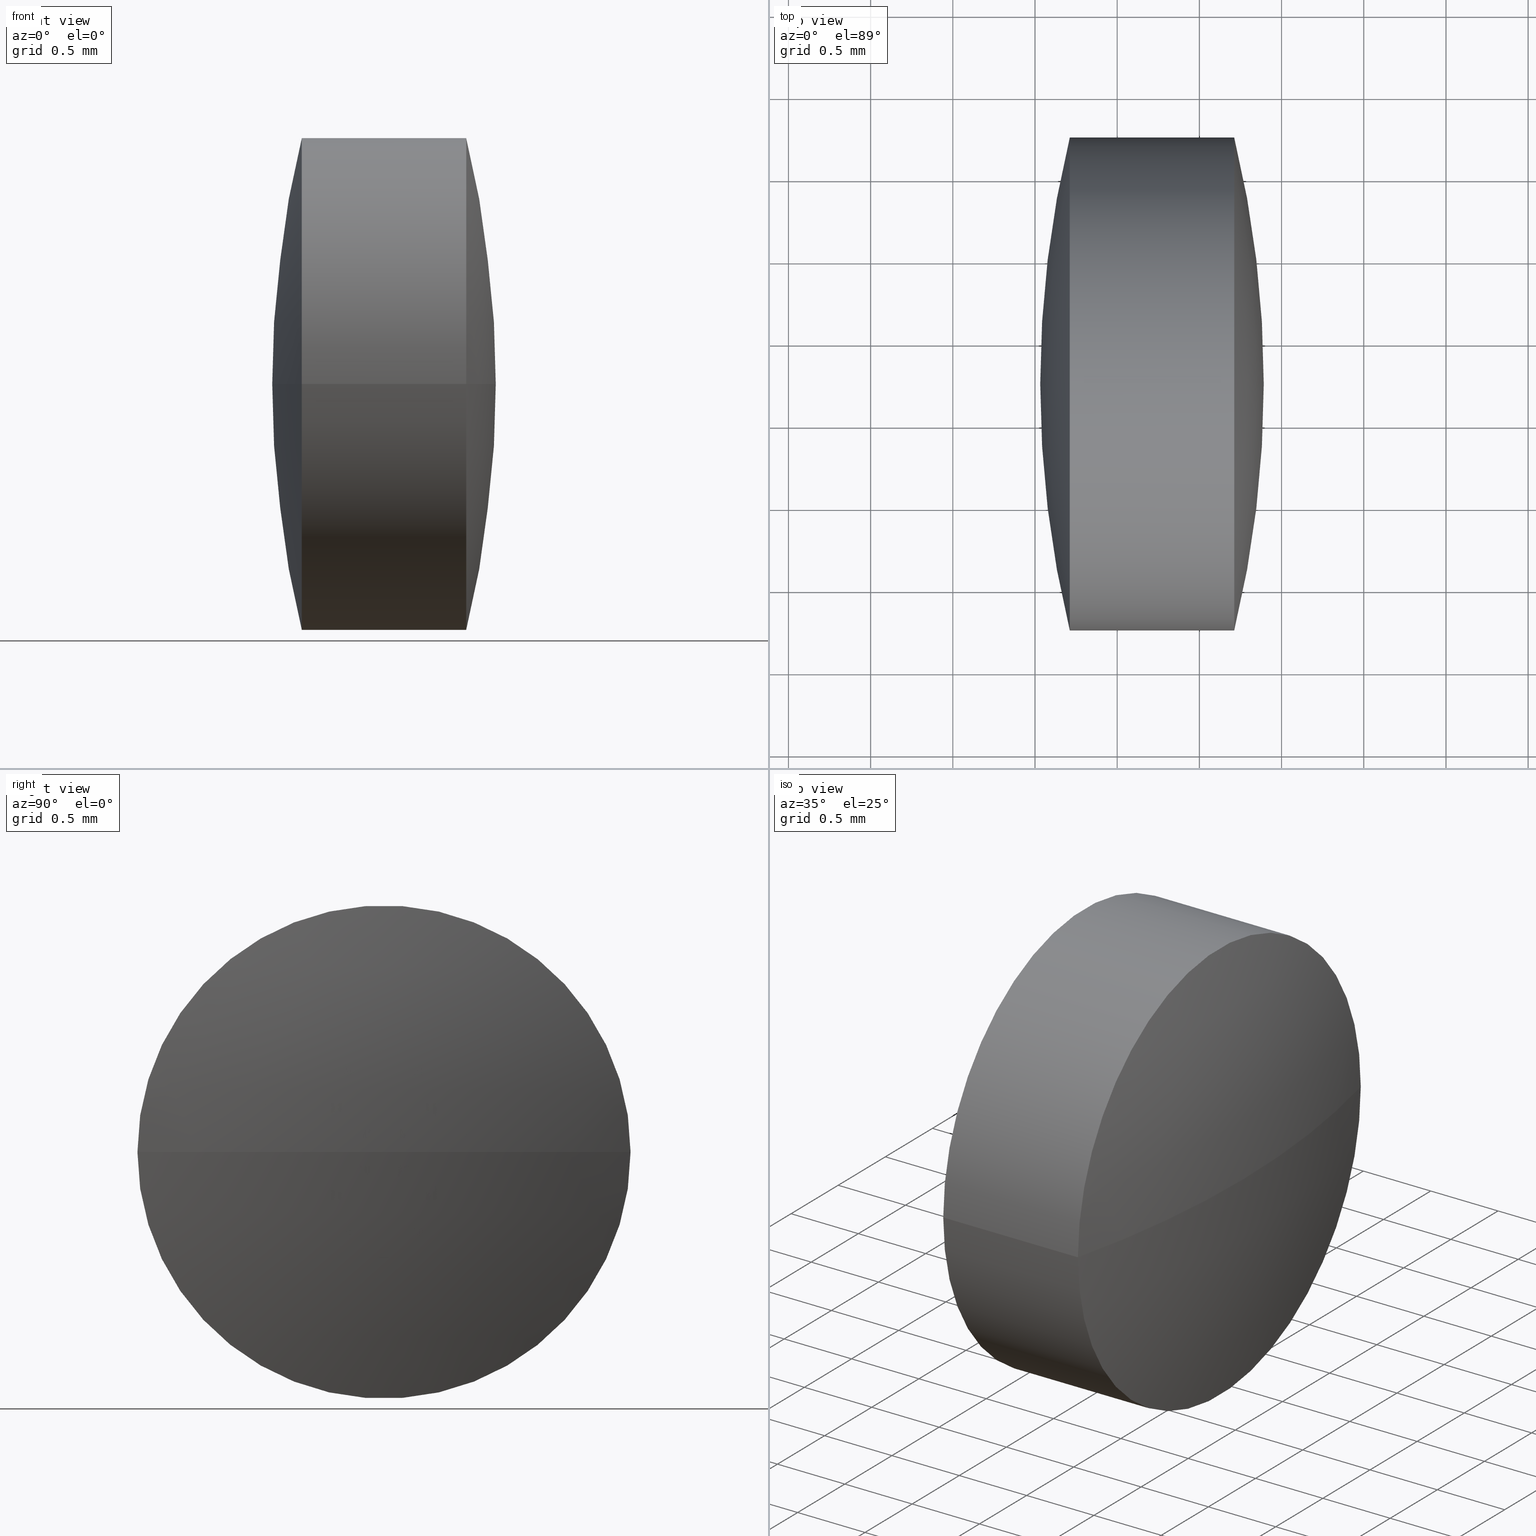
[diagram: canonical four-view strip — front | top / right | iso, engineering-drawing reading convention]
A machine part, canonical four-view strip (front | top / right | iso — engineering-drawing reading convention). The complete STEP part file that produces these views, byte-faithful:
ISO-10303-21;
HEADER;
FILE_DESCRIPTION (( 'STEP AP203' ),
    '1' );
FILE_NAME ('110003.STEP',
    '2019-06-24T05:42:14',
    ( '' ),
    ( '' ),
    'SwSTEP 2.0',
    'SolidWorks 2016',
    '' );
FILE_SCHEMA (( 'CONFIG_CONTROL_DESIGN' ));
ENDSEC;

DATA;
#1 = CC_DESIGN_APPROVAL ( #87, ( #303 ) ) ;
#2 = DATE_AND_TIME ( #83, #219 ) ;
#3 = CIRCLE ( 'NONE', #6, 6.343264629644567200 ) ;
#4 = ADVANCED_FACE ( 'NONE', ( #71 ), #190, .T. ) ;
#5 = DIRECTION ( 'NONE',  ( 0.0000000000000000000, 0.0000000000000000000, 1.000000000000000000 ) ) ;
#6 = AXIS2_PLACEMENT_3D ( 'NONE', #142, #54, #74 ) ;
#7 = PERSON_AND_ORGANIZATION_ROLE ( 'creator' ) ;
#8 = DATE_TIME_ROLE ( 'classification_date' ) ;
#9 = PRODUCT_DEFINITION_FORMATION_WITH_SPECIFIED_SOURCE ( '�κ�', '', #148, .NOT_KNOWN. ) ;
#10 = APPROVAL_STATUS ( 'not_yet_approved' ) ;
#11 =( LENGTH_UNIT ( ) NAMED_UNIT ( * ) SI_UNIT ( .MILLI., .METRE. ) );
#12 = APPROVAL_ROLE ( '' ) ;
#13 = COORDINATED_UNIVERSAL_TIME_OFFSET ( 8, 0, .AHEAD. ) ;
#14 = DIRECTION ( 'NONE',  ( 0.0000000000000000000, 0.0000000000000000000, -1.000000000000000000 ) ) ;
#15 = CARTESIAN_POINT ( 'NONE',  ( 9.287603355992811100, 7.242101976729419000, 1.836980695753582100E-016 ) ) ;
#16 = CC_DESIGN_DATE_AND_TIME_ASSIGNMENT ( #92, #80, ( #252 ) ) ;
#17 = CALENDAR_DATE ( 2019, 24, 6 ) ;
#18 = ORIENTED_EDGE ( 'NONE', *, *, #73, .T. ) ;
#19 = APPROVAL ( #10, 'δָ��' ) ;
#20 = LOCAL_TIME ( 13, 42, 14.00000000000000000, #288 ) ;
#21 = ORIENTED_EDGE ( 'NONE', *, *, #65, .F. ) ;
#22 = CARTESIAN_POINT ( 'NONE',  ( 9.711656042241019200, 4.242084833774320900, -1.836980695753577600E-016 ) ) ;
#23 = DIRECTION ( 'NONE',  ( 2.324536403052360400E-015, 1.000000000000000000, 0.0000000000000000000 ) ) ;
#24 = PERSON_AND_ORGANIZATION ( #79, #99 ) ;
#25 = DATE_AND_TIME ( #220, #273 ) ;
#26 = VERTEX_POINT ( 'NONE', #22 ) ;
#27 = CC_DESIGN_DATE_AND_TIME_ASSIGNMENT ( #120, #129, ( #32 ) ) ;
#28 = LOCAL_TIME ( 13, 42, 14.00000000000000000, #150 ) ;
#29 = DIRECTION ( 'NONE',  ( 2.842884826176247500E-031, 1.224646799147353200E-016, -1.000000000000000000 ) ) ;
#30 = COORDINATED_UNIVERSAL_TIME_OFFSET ( 8, 0, .AHEAD. ) ;
#31 = ORIENTED_EDGE ( 'NONE', *, *, #244, .F. ) ;
#32 = PRODUCT_DEFINITION ( 'δ֪', '', #303, #124 ) ;
#33 = APPLICATION_PROTOCOL_DEFINITION ( 'international standard', 'config_control_design', 1994, #179 ) ;
#34 = PERSON_AND_ORGANIZATION_ROLE ( 'design_owner' ) ;
#35 = CC_DESIGN_PERSON_AND_ORGANIZATION_ASSIGNMENT ( #167, #58, ( #303 ) ) ;
#36 = PERSON_AND_ORGANIZATION_ROLE ( 'creator' ) ;
#37 = DIRECTION ( 'NONE',  ( 2.324536403052360400E-015, 1.000000000000000000, 0.0000000000000000000 ) ) ;
#38 = LINE ( 'NONE', #15, #166 ) ;
#39 = DIRECTION ( 'NONE',  ( 0.0000000000000000000, 1.000000000000000000, 1.224646799147353200E-016 ) ) ;
#40 = CALENDAR_DATE ( 2019, 24, 6 ) ;
#41 = EDGE_LOOP ( 'NONE', ( #123, #251, #21 ) ) ;
#42 = AXIS2_PLACEMENT_3D ( 'NONE', #296, #68, #269 ) ;
#43 = CARTESIAN_POINT ( 'NONE',  ( 4.548298154920867200, 5.742093405251865500, 0.0000000000000000000 ) ) ;
#44 = AXIS2_PLACEMENT_3D ( 'NONE', #106, #14, #128 ) ;
#45 = DIRECTION ( 'NONE',  ( -1.000000000000000000, 2.321391627492575400E-015, -0.0000000000000000000 ) ) ;
#46 = EDGE_CURVE ( 'NONE', #26, #137, #121, .T. ) ;
#47 = COORDINATED_UNIVERSAL_TIME_OFFSET ( 8, 0, .AHEAD. ) ;
#48 = COORDINATED_UNIVERSAL_TIME_OFFSET ( 8, 0, .AHEAD. ) ;
#49 = SPHERICAL_SURFACE ( 'NONE', #256, 6.343264629644402000 ) ;
#50 = CC_DESIGN_APPROVAL ( #94, ( #9 ) ) ;
#51 = DATE_AND_TIME ( #210, #164 ) ;
#52 = LOCAL_TIME ( 13, 42, 14.00000000000000000, #48 ) ;
#53 = VERTEX_POINT ( 'NONE', #235 ) ;
#54 = DIRECTION ( 'NONE',  ( 0.0000000000000000000, 0.0000000000000000000, 1.000000000000000000 ) ) ;
#55 = DIRECTION ( 'NONE',  ( 1.000000000000000000, 0.0000000000000000000, 0.0000000000000000000 ) ) ;
#56 = CIRCLE ( 'NONE', #184, 6.343264629644565400 ) ;
#57 = PRODUCT ( '110003', '110003', '', ( #104 ) ) ;
#58 = PERSON_AND_ORGANIZATION_ROLE ( 'design_supplier' ) ;
#59 = AXIS2_PLACEMENT_3D ( 'NONE', #216, #285, #243 ) ;
#60 = APPROVAL_STATUS ( 'not_yet_approved' ) ;
#61 = SECURITY_CLASSIFICATION_LEVEL ( 'unclassified' ) ;
#62 = DIRECTION ( 'NONE',  ( 0.0000000000000000000, 1.000000000000000000, 1.224646799147353000E-016 ) ) ;
#63 = APPROVAL_PERSON_ORGANIZATION ( #130, #87, #262 ) ;
#64 = DIRECTION ( 'NONE',  ( -2.312951417694965000E-015, -1.000000000000000000, 0.0000000000000000000 ) ) ;
#65 = EDGE_CURVE ( 'NONE', #137, #254, #3, .T. ) ;
#66 = CIRCLE ( 'NONE', #169, 1.500008571477556800 ) ;
#67 = SECURITY_CLASSIFICATION ( '', '', #147 ) ;
#68 = DIRECTION ( 'NONE',  ( 0.0000000000000000000, 0.0000000000000000000, -1.000000000000000000 ) ) ;
#69 = DIRECTION ( 'NONE',  ( 0.0000000000000000000, 0.0000000000000000000, -1.000000000000000000 ) ) ;
#70 = PERSON_AND_ORGANIZATION ( #79, #99 ) ;
#71 = FACE_OUTER_BOUND ( 'NONE', #159, .T. ) ;
#72 = PRODUCT_DEFINITION_SHAPE ( 'NONE', 'NONE',  #252 ) ;
#73 = EDGE_CURVE ( 'NONE', #191, #290, #131, .T. ) ;
#74 = DIRECTION ( 'NONE',  ( 1.000000000000000000, 0.0000000000000000000, 0.0000000000000000000 ) ) ;
#75 = ORIENTED_EDGE ( 'NONE', *, *, #134, .F. ) ;
#76 = CC_DESIGN_PERSON_AND_ORGANIZATION_ASSIGNMENT ( #84, #174, ( #148 ) ) ;
#77 = APPROVAL_ROLE ( '' ) ;
#78 = SHAPE_DEFINITION_REPRESENTATION ( #278, #177 ) ;
#79 = PERSON ( 'δָ��', 'δָ��', 'δָ��', ('δָ��'), ('δָ��'), ('δָ��') ) ;
#80 = DATE_TIME_ROLE ( 'creation_date' ) ;
#81 = APPROVAL_ROLE ( '' ) ;
#82 =( NAMED_UNIT ( * ) PLANE_ANGLE_UNIT ( ) SI_UNIT ( $, .RADIAN. ) );
#83 = CALENDAR_DATE ( 2019, 24, 6 ) ;
#84 = PERSON_AND_ORGANIZATION ( #79, #99 ) ;
#85 = ORIENTED_EDGE ( 'NONE', *, *, #90, .F. ) ;
#86 = DIRECTION ( 'NONE',  ( 0.0000000000000000000, 0.0000000000000000000, 1.000000000000000000 ) ) ;
#87 = APPROVAL ( #215, 'δָ��' ) ;
#88 = CARTESIAN_POINT ( 'NONE',  ( 10.71165604224102100, 5.742093405251859300, 0.0000000000000000000 ) ) ;
#89 = PERSON_AND_ORGANIZATION ( #79, #99 ) ;
#90 = EDGE_CURVE ( 'NONE', #290, #53, #66, .T. ) ;
#91 = PERSON_AND_ORGANIZATION ( #79, #99 ) ;
#92 = DATE_AND_TIME ( #17, #257 ) ;
#93 = ORIENTED_EDGE ( 'NONE', *, *, #46, .F. ) ;
#94 = APPROVAL ( #284, 'δָ��' ) ;
#95 = CC_DESIGN_APPROVAL ( #19, ( #119 ) ) ;
#96 = CYLINDRICAL_SURFACE ( 'NONE', #118, 1.500008571477556000 ) ;
#97 = ADVANCED_FACE ( 'NONE', ( #242 ), #181, .T. ) ;
#98 = PERSON_AND_ORGANIZATION ( #79, #99 ) ;
#99 = ORGANIZATION ( 'δָ��', 'δָ��', '' ) ;
#100 = DIRECTION ( 'NONE',  ( -1.000000000000000000, 2.321391627492575400E-015, -0.0000000000000000000 ) ) ;
#101 = AXIS2_PLACEMENT_3D ( 'NONE', #223, #163, #263 ) ;
#102 = CIRCLE ( 'NONE', #275, 1.500008571477556800 ) ;
#103 = CC_DESIGN_PERSON_AND_ORGANIZATION_ASSIGNMENT ( #144, #264, ( #119 ) ) ;
#104 = MECHANICAL_CONTEXT ( 'NONE', #179, 'mechanical' ) ;
#105 = APPROVAL_ROLE ( '' ) ;
#106 = CARTESIAN_POINT ( 'NONE',  ( 15.87501392956135100, 5.742093405251858400, 0.0000000000000000000 ) ) ;
#107 = APPLICATION_CONTEXT ( 'configuration controlled 3d designs of mechanical parts and assemblies' ) ;
#108 = AXIS2_PLACEMENT_3D ( 'NONE', #43, #86, #247 ) ;
#109 = APPROVAL_DATE_TIME ( #51, #186 ) ;
#110 = ORIENTED_EDGE ( 'NONE', *, *, #134, .T. ) ;
#111 = CIRCLE ( 'NONE', #101, 1.500008571477554200 ) ;
#112 = CC_DESIGN_PERSON_AND_ORGANIZATION_ASSIGNMENT ( #158, #240, ( #252 ) ) ;
#113 = DIRECTION ( 'NONE',  ( -1.000000000000000000, 2.321391627492575400E-015, -0.0000000000000000000 ) ) ;
#114 = ORIENTED_EDGE ( 'NONE', *, *, #255, .T. ) ;
#115 = CARTESIAN_POINT ( 'NONE',  ( 4.548298154920867200, 5.742093405251865500, 0.0000000000000000000 ) ) ;
#116 = LOCAL_TIME ( 13, 42, 14.00000000000000000, #13 ) ;
#117 = ORIENTED_EDGE ( 'NONE', *, *, #274, .T. ) ;
#118 = AXIS2_PLACEMENT_3D ( 'NONE', #156, #295, #154 ) ;
#119 = SECURITY_CLASSIFICATION ( '', '', #61 ) ;
#120 = DATE_AND_TIME ( #189, #116 ) ;
#121 = CIRCLE ( 'NONE', #155, 1.500008571477554200 ) ;
#122 = APPROVAL ( #217, 'δָ��' ) ;
#123 = ORIENTED_EDGE ( 'NONE', *, *, #227, .T. ) ;
#124 = DESIGN_CONTEXT ( 'detailed design', #107, 'design' ) ;
#125 = APPROVAL_ROLE ( '' ) ;
#126 = CC_DESIGN_SECURITY_CLASSIFICATION ( #119, ( #303 ) ) ;
#127 = DIRECTION ( 'NONE',  ( -1.000000000000000000, 2.321391627492575400E-015, -0.0000000000000000000 ) ) ;
#128 = DIRECTION ( 'NONE',  ( 2.187798967578635600E-015, 1.000000000000000000, 0.0000000000000000000 ) ) ;
#129 = DATE_TIME_ROLE ( 'creation_date' ) ;
#130 = PERSON_AND_ORGANIZATION ( #79, #99 ) ;
#131 = CIRCLE ( 'NONE', #108, 6.343264629644402000 ) ;
#132 = DIRECTION ( 'NONE',  ( 2.842884826176247500E-031, 1.224646799147353200E-016, -1.000000000000000000 ) ) ;
#133 = VECTOR ( 'NONE', #100, 1000.000000000000000 ) ;
#134 = EDGE_CURVE ( 'NONE', #53, #26, #234, .T. ) ;
#135 = DIRECTION ( 'NONE',  ( -2.312951417694965000E-015, -1.000000000000000000, 0.0000000000000000000 ) ) ;
#136 = AXIS2_PLACEMENT_3D ( 'NONE', #115, #69, #23 ) ;
#137 = VERTEX_POINT ( 'NONE', #300 ) ;
#138 = AXIS2_PLACEMENT_3D ( 'NONE', #265, #5, #55 ) ;
#139 = DATE_AND_TIME ( #175, #28 ) ;
#140 = ADVANCED_FACE ( 'NONE', ( #279 ), #96, .T. ) ;
#141 =( NAMED_UNIT ( * ) SI_UNIT ( $, .STERADIAN. ) SOLID_ANGLE_UNIT ( ) );
#142 = CARTESIAN_POINT ( 'NONE',  ( 15.87501392956135100, 5.742093405251858400, 0.0000000000000000000 ) ) ;
#143 = CALENDAR_DATE ( 2019, 24, 6 ) ;
#144 = PERSON_AND_ORGANIZATION ( #79, #99 ) ;
#145 = ORIENTED_EDGE ( 'NONE', *, *, #73, .F. ) ;
#146 = APPLICATION_PROTOCOL_DEFINITION ( 'international standard', 'config_control_design', 1994, #178 ) ;
#147 = SECURITY_CLASSIFICATION_LEVEL ( 'unclassified' ) ;
#148 = PRODUCT ( '110003', '110003', '', ( #198 ) ) ;
#149 = APPROVAL_STATUS ( 'not_yet_approved' ) ;
#150 = COORDINATED_UNIVERSAL_TIME_OFFSET ( 8, 0, .AHEAD. ) ;
#151 = DATE_TIME_ROLE ( 'classification_date' ) ;
#152 = CARTESIAN_POINT ( 'NONE',  ( 10.71165604224102100, 5.742093405251859300, 0.0000000000000000000 ) ) ;
#153 = CARTESIAN_POINT ( 'NONE',  ( 9.531749299916786100, 5.742093405251872600, 0.0000000000000000000 ) ) ;
#154 = DIRECTION ( 'NONE',  ( -2.312951417694966200E-015, -1.000000000000000000, 0.0000000000000000000 ) ) ;
#155 = AXIS2_PLACEMENT_3D ( 'NONE', #270, #45, #170 ) ;
#156 = CARTESIAN_POINT ( 'NONE',  ( 9.287603355992807500, 5.742093405251862800, 0.0000000000000000000 ) ) ;
#157 = APPROVAL_PERSON_ORGANIZATION ( #180, #201, #77 ) ;
#158 = PERSON_AND_ORGANIZATION ( #79, #99 ) ;
#159 = EDGE_LOOP ( 'NONE', ( #145, #304, #85 ) ) ;
#160 = CC_DESIGN_APPROVAL ( #186, ( #67 ) ) ;
#161 = APPLICATION_CONTEXT ( 'configuration controlled 3d designs of mechanical parts and assemblies' ) ;
#162 = FACE_OUTER_BOUND ( 'NONE', #41, .T. ) ;
#163 = DIRECTION ( 'NONE',  ( -1.000000000000000000, 2.321391627492575400E-015, -0.0000000000000000000 ) ) ;
#164 = LOCAL_TIME ( 13, 42, 14.00000000000000000, #47 ) ;
#165 = APPROVAL_PERSON_ORGANIZATION ( #211, #122, #81 ) ;
#166 = VECTOR ( 'NONE', #237, 1000.000000000000000 ) ;
#167 = PERSON_AND_ORGANIZATION ( #79, #99 ) ;
#168 = COORDINATED_UNIVERSAL_TIME_OFFSET ( 8, 0, .AHEAD. ) ;
#169 = AXIS2_PLACEMENT_3D ( 'NONE', #88, #113, #135 ) ;
#170 = DIRECTION ( 'NONE',  ( -2.312951417694968900E-015, -1.000000000000000000, 0.0000000000000000000 ) ) ;
#171 = EDGE_LOOP ( 'NONE', ( #114, #117, #93, #75 ) ) ;
#172 = CARTESIAN_POINT ( 'NONE',  ( 10.89156278456526800, 5.742093405251850400, 0.0000000000000000000 ) ) ;
#173 = APPROVAL_DATE_TIME ( #25, #94 ) ;
#174 = PERSON_AND_ORGANIZATION_ROLE ( 'design_owner' ) ;
#175 = CALENDAR_DATE ( 2019, 24, 6 ) ;
#176 = CC_DESIGN_PERSON_AND_ORGANIZATION_ASSIGNMENT ( #98, #34, ( #57 ) ) ;
#177 = ADVANCED_BREP_SHAPE_REPRESENTATION ( '110003', ( #207, #138 ), #259 ) ;
#178 = APPLICATION_CONTEXT ( 'configuration controlled 3d designs of mechanical parts and assemblies' ) ;
#179 = APPLICATION_CONTEXT ( 'configuration controlled 3d designs of mechanical parts and assemblies' ) ;
#180 = PERSON_AND_ORGANIZATION ( #79, #99 ) ;
#181 = SPHERICAL_SURFACE ( 'NONE', #42, 6.343264629644565400 ) ;
#182 = APPROVAL_PERSON_ORGANIZATION ( #91, #186, #125 ) ;
#183 = PERSON_AND_ORGANIZATION ( #79, #99 ) ;
#184 = AXIS2_PLACEMENT_3D ( 'NONE', #261, #29, #62 ) ;
#185 = ORIENTED_EDGE ( 'NONE', *, *, #293, .F. ) ;
#186 = APPROVAL ( #60, 'δָ��' ) ;
#187 = EDGE_LOOP ( 'NONE', ( #276, #302, #110, #291 ) ) ;
#188 = CC_DESIGN_DATE_AND_TIME_ASSIGNMENT ( #230, #8, ( #119 ) ) ;
#189 = CALENDAR_DATE ( 2019, 24, 6 ) ;
#190 = SPHERICAL_SURFACE ( 'NONE', #136, 6.343264629644402000 ) ;
#191 = VERTEX_POINT ( 'NONE', #172 ) ;
#192 = ADVANCED_FACE ( 'NONE', ( #271 ), #229, .T. ) ;
#193 = CARTESIAN_POINT ( 'NONE',  ( 9.287603355992805700, 4.242084833774306700, 0.0000000000000000000 ) ) ;
#194 = DIRECTION ( 'NONE',  ( -1.000000000000000000, 2.321391627492575400E-015, -0.0000000000000000000 ) ) ;
#195 = CC_DESIGN_PERSON_AND_ORGANIZATION_ASSIGNMENT ( #70, #238, ( #67 ) ) ;
#196 = APPLICATION_PROTOCOL_DEFINITION ( 'international standard', 'config_control_design', 1994, #107 ) ;
#197 = APPLICATION_PROTOCOL_DEFINITION ( 'international standard', 'config_control_design', 1994, #161 ) ;
#198 = MECHANICAL_CONTEXT ( 'NONE', #161, 'mechanical' ) ;
#199 = APPROVAL_DATE_TIME ( #225, #122 ) ;
#200 = CLOSED_SHELL ( 'NONE', ( #140, #4, #305, #97, #233, #192 ) ) ;
#201 = APPROVAL ( #149, 'δָ��' ) ;
#202 = APPROVAL_PERSON_ORGANIZATION ( #89, #19, #105 ) ;
#203 = CARTESIAN_POINT ( 'NONE',  ( 9.287603355992807500, 5.742093405251862800, 0.0000000000000000000 ) ) ;
#204 = LOCAL_TIME ( 13, 42, 14.00000000000000000, #266 ) ;
#205 = COORDINATED_UNIVERSAL_TIME_OFFSET ( 8, 0, .AHEAD. ) ;
#206 = ORIENTED_EDGE ( 'NONE', *, *, #46, .T. ) ;
#207 = MANIFOLD_SOLID_BREP ( '��ת1', #200 ) ;
#208 = PRODUCT_RELATED_PRODUCT_CATEGORY ( 'detail', '', ( #57 ) ) ;
#209 = AXIS2_PLACEMENT_3D ( 'NONE', #203, #127, #239 ) ;
#210 = CALENDAR_DATE ( 2019, 24, 6 ) ;
#211 = PERSON_AND_ORGANIZATION ( #79, #99 ) ;
#212 = ORIENTED_EDGE ( 'NONE', *, *, #255, .F. ) ;
#213 = CC_DESIGN_SECURITY_CLASSIFICATION ( #67, ( #9 ) ) ;
#214 = PERSON_AND_ORGANIZATION_ROLE ( 'design_supplier' ) ;
#215 = APPROVAL_STATUS ( 'not_yet_approved' ) ;
#216 = CARTESIAN_POINT ( 'NONE',  ( 0.0000000000000000000, 0.0000000000000000000, 0.0000000000000000000 ) ) ;
#217 = APPROVAL_STATUS ( 'not_yet_approved' ) ;
#218 = FACE_OUTER_BOUND ( 'NONE', #267, .T. ) ;
#219 = LOCAL_TIME ( 13, 42, 14.00000000000000000, #30 ) ;
#220 = CALENDAR_DATE ( 2019, 24, 6 ) ;
#221 = CC_DESIGN_PERSON_AND_ORGANIZATION_ASSIGNMENT ( #183, #214, ( #9 ) ) ;
#222 = CIRCLE ( 'NONE', #228, 6.343264629644402000 ) ;
#223 = CARTESIAN_POINT ( 'NONE',  ( 9.711656042241022700, 5.742093405251862000, 0.0000000000000000000 ) ) ;
#224 = PERSON_AND_ORGANIZATION ( #79, #99 ) ;
#225 = DATE_AND_TIME ( #40, #52 ) ;
#226 = EDGE_LOOP ( 'NONE', ( #185, #206, #258 ) ) ;
#227 = EDGE_CURVE ( 'NONE', #137, #26, #111, .T. ) ;
#228 = AXIS2_PLACEMENT_3D ( 'NONE', #289, #132, #39 ) ;
#229 = CYLINDRICAL_SURFACE ( 'NONE', #209, 1.500008571477556000 ) ;
#230 = DATE_AND_TIME ( #260, #20 ) ;
#231 = CC_DESIGN_APPROVAL ( #201, ( #32 ) ) ;
#232 = APPROVAL_DATE_TIME ( #301, #87 ) ;
#233 = ADVANCED_FACE ( 'NONE', ( #218 ), #49, .T. ) ;
#234 = LINE ( 'NONE', #193, #133 ) ;
#235 = CARTESIAN_POINT ( 'NONE',  ( 10.71165604224101700, 4.242084833774289800, -1.836980695753588200E-016 ) ) ;
#236 = PERSON_AND_ORGANIZATION_ROLE ( 'creator' ) ;
#237 = DIRECTION ( 'NONE',  ( -1.000000000000000000, 2.321391627492575400E-015, -0.0000000000000000000 ) ) ;
#238 = PERSON_AND_ORGANIZATION_ROLE ( 'classification_officer' ) ;
#239 = DIRECTION ( 'NONE',  ( -2.312951417694966200E-015, -1.000000000000000000, 0.0000000000000000000 ) ) ;
#240 = PERSON_AND_ORGANIZATION_ROLE ( 'creator' ) ;
#241 = APPROVAL_DATE_TIME ( #2, #201 ) ;
#242 = FACE_OUTER_BOUND ( 'NONE', #226, .T. ) ;
#243 = DIRECTION ( 'NONE',  ( 1.000000000000000000, 0.0000000000000000000, 0.0000000000000000000 ) ) ;
#244 = EDGE_CURVE ( 'NONE', #191, #53, #222, .T. ) ;
#245 = DIRECTION ( 'NONE',  ( 0.0000000000000000000, 0.0000000000000000000, -1.000000000000000000 ) ) ;
#246 = CC_DESIGN_DATE_AND_TIME_ASSIGNMENT ( #250, #151, ( #67 ) ) ;
#247 = DIRECTION ( 'NONE',  ( 1.000000000000000000, 0.0000000000000000000, 0.0000000000000000000 ) ) ;
#248 = APPROVAL_DATE_TIME ( #139, #19 ) ;
#249 = CC_DESIGN_PERSON_AND_ORGANIZATION_ASSIGNMENT ( #224, #236, ( #303 ) ) ;
#250 = DATE_AND_TIME ( #143, #204 ) ;
#251 = ORIENTED_EDGE ( 'NONE', *, *, #293, .T. ) ;
#252 = PRODUCT_DEFINITION ( 'δ֪', '', #9, #298 ) ;
#253 = PERSON_AND_ORGANIZATION ( #79, #99 ) ;
#254 = VERTEX_POINT ( 'NONE', #153 ) ;
#255 = EDGE_CURVE ( 'NONE', #53, #290, #102, .T. ) ;
#256 = AXIS2_PLACEMENT_3D ( 'NONE', #292, #245, #37 ) ;
#257 = LOCAL_TIME ( 13, 42, 14.00000000000000000, #168 ) ;
#258 = ORIENTED_EDGE ( 'NONE', *, *, #65, .T. ) ;
#259 =( GEOMETRIC_REPRESENTATION_CONTEXT ( 3 ) GLOBAL_UNCERTAINTY_ASSIGNED_CONTEXT ( ( #299 ) ) GLOBAL_UNIT_ASSIGNED_CONTEXT ( ( #11, #82, #141 ) ) REPRESENTATION_CONTEXT ( 'NONE', 'WORKASPACE' ) );
#260 = CALENDAR_DATE ( 2019, 24, 6 ) ;
#261 = CARTESIAN_POINT ( 'NONE',  ( 15.87501392956135100, 5.742093405251858400, 0.0000000000000000000 ) ) ;
#262 = APPROVAL_ROLE ( '' ) ;
#263 = DIRECTION ( 'NONE',  ( -2.312951417694968900E-015, -1.000000000000000000, 0.0000000000000000000 ) ) ;
#264 = PERSON_AND_ORGANIZATION_ROLE ( 'classification_officer' ) ;
#265 = CARTESIAN_POINT ( 'NONE',  ( 0.0000000000000000000, 0.0000000000000000000, 0.0000000000000000000 ) ) ;
#266 = COORDINATED_UNIVERSAL_TIME_OFFSET ( 8, 0, .AHEAD. ) ;
#267 = EDGE_LOOP ( 'NONE', ( #31, #18, #212 ) ) ;
#268 = CC_DESIGN_APPROVAL ( #122, ( #252 ) ) ;
#269 = DIRECTION ( 'NONE',  ( 2.187798967578635600E-015, 1.000000000000000000, 0.0000000000000000000 ) ) ;
#270 = CARTESIAN_POINT ( 'NONE',  ( 9.711656042241022700, 5.742093405251862000, 0.0000000000000000000 ) ) ;
#271 = FACE_OUTER_BOUND ( 'NONE', #187, .T. ) ;
#272 = CALENDAR_DATE ( 2019, 24, 6 ) ;
#273 = LOCAL_TIME ( 13, 42, 14.00000000000000000, #205 ) ;
#274 = EDGE_CURVE ( 'NONE', #290, #137, #38, .T. ) ;
#275 = AXIS2_PLACEMENT_3D ( 'NONE', #152, #194, #64 ) ;
#276 = ORIENTED_EDGE ( 'NONE', *, *, #274, .F. ) ;
#277 = CC_DESIGN_PERSON_AND_ORGANIZATION_ASSIGNMENT ( #24, #36, ( #32 ) ) ;
#278 = PRODUCT_DEFINITION_SHAPE ( 'NONE', 'NONE',  #32 ) ;
#279 = FACE_OUTER_BOUND ( 'NONE', #171, .T. ) ;
#280 = COORDINATED_UNIVERSAL_TIME_OFFSET ( 8, 0, .AHEAD. ) ;
#281 = APPROVAL_PERSON_ORGANIZATION ( #253, #94, #12 ) ;
#282 = CC_DESIGN_PERSON_AND_ORGANIZATION_ASSIGNMENT ( #283, #7, ( #9 ) ) ;
#283 = PERSON_AND_ORGANIZATION ( #79, #99 ) ;
#284 = APPROVAL_STATUS ( 'not_yet_approved' ) ;
#285 = DIRECTION ( 'NONE',  ( 0.0000000000000000000, 0.0000000000000000000, 1.000000000000000000 ) ) ;
#286 = CARTESIAN_POINT ( 'NONE',  ( 10.71165604224102300, 7.242101976729420800, 0.0000000000000000000 ) ) ;
#287 = LOCAL_TIME ( 13, 42, 14.00000000000000000, #280 ) ;
#288 = COORDINATED_UNIVERSAL_TIME_OFFSET ( 8, 0, .AHEAD. ) ;
#289 = CARTESIAN_POINT ( 'NONE',  ( 4.548298154920867200, 5.742093405251865500, 0.0000000000000000000 ) ) ;
#290 = VERTEX_POINT ( 'NONE', #286 ) ;
#291 = ORIENTED_EDGE ( 'NONE', *, *, #227, .F. ) ;
#292 = CARTESIAN_POINT ( 'NONE',  ( 4.548298154920867200, 5.742093405251865500, 0.0000000000000000000 ) ) ;
#293 = EDGE_CURVE ( 'NONE', #26, #254, #56, .T. ) ;
#294 = SPHERICAL_SURFACE ( 'NONE', #44, 6.343264629644565400 ) ;
#295 = DIRECTION ( 'NONE',  ( -1.000000000000000000, 2.321391627492575400E-015, -0.0000000000000000000 ) ) ;
#296 = CARTESIAN_POINT ( 'NONE',  ( 15.87501392956135100, 5.742093405251858400, 0.0000000000000000000 ) ) ;
#297 = PRODUCT_RELATED_PRODUCT_CATEGORY ( 'detail', '', ( #148 ) ) ;
#298 = DESIGN_CONTEXT ( 'detailed design', #178, 'design' ) ;
#299 = UNCERTAINTY_MEASURE_WITH_UNIT (LENGTH_MEASURE( 1.000000000000000100E-005 ), #11, 'distance_accuracy_value', 'NONE');
#300 = CARTESIAN_POINT ( 'NONE',  ( 9.711656042241026300, 7.242101976729413700, 0.0000000000000000000 ) ) ;
#301 = DATE_AND_TIME ( #272, #287 ) ;
#302 = ORIENTED_EDGE ( 'NONE', *, *, #90, .T. ) ;
#303 = PRODUCT_DEFINITION_FORMATION_WITH_SPECIFIED_SOURCE ( '�κ�', '', #57, .NOT_KNOWN. ) ;
#304 = ORIENTED_EDGE ( 'NONE', *, *, #244, .T. ) ;
#305 = ADVANCED_FACE ( 'NONE', ( #162 ), #294, .T. ) ;
ENDSEC;
END-ISO-10303-21;
